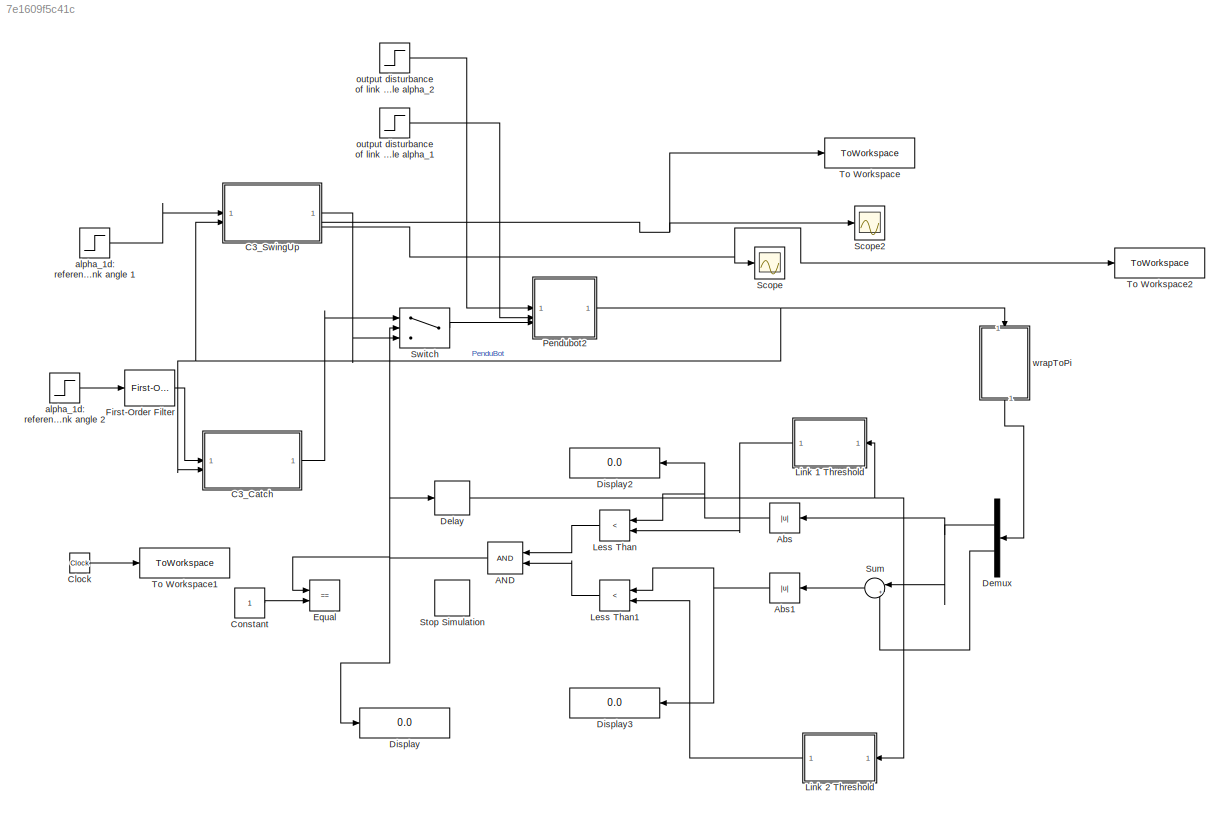
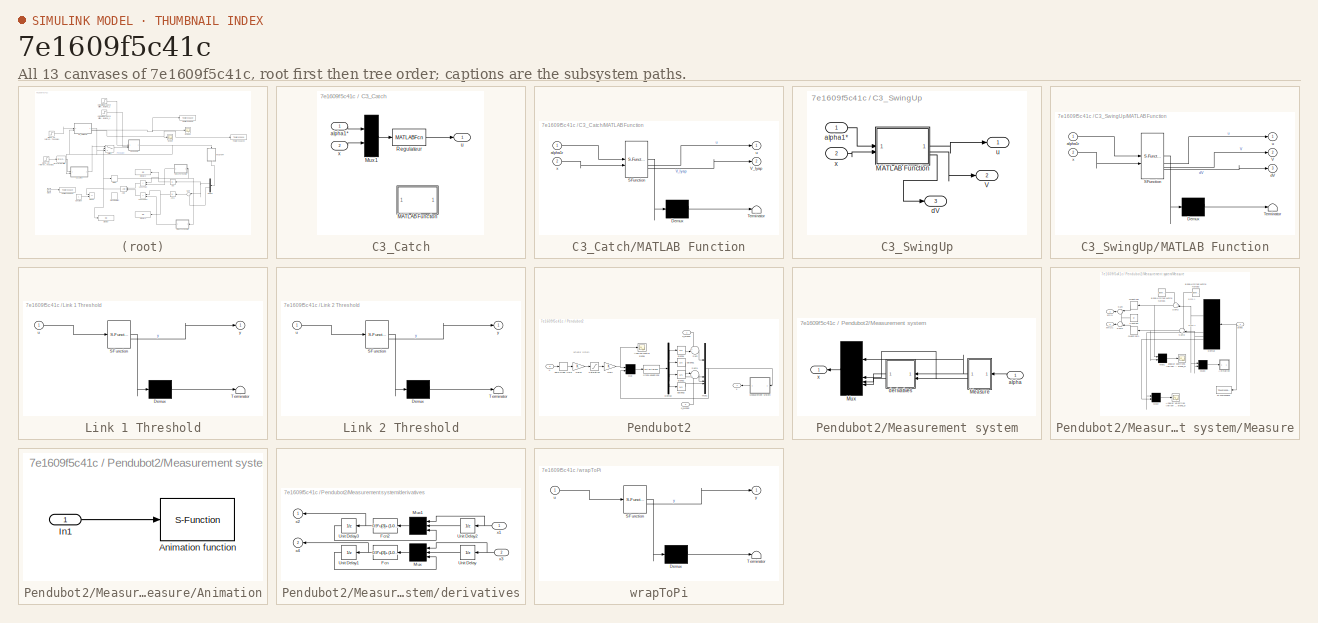
[diagram: thumbnail index - all 13 canvases of the model, root first then tree order]
MODEL slx_7e1609f5c41c
KIND model
CONFIG AbsTol = auto
CONFIG EnableMultiTasking = off
CONFIG FixedStep = auto
CONFIG MaxStep = auto
CONFIG MinStep = auto
CONFIG RelTol = 1e-3
CONFIG SampleTimeConstraint = Unconstrained
CONFIG SolverName = VariableStepAuto
CONFIG StartTime = 0.0
CONFIG StopTime = 10.0
BLOCK [Logic] AND
  AllPortsSameDT = off
  IconShape = distinctive
  NameLocation = top
  OutDataTypeStr = boolean
BLOCK [Abs] Abs
  NameLocation = top
  SaturateOnIntegerOverflow = off
BLOCK [Abs] Abs1
  NameLocation = top
  SaturateOnIntegerOverflow = off
BLOCK [SubSystem] C3_Catch
BLOCK [SubSystem] C3_Catch/MATLAB Function
  Commented = on
  ErrorFcn = Stateflow.Translate.translate
  LibrarySourceBlock = simulink/User-Defined\nFunctions/MATLAB Function
  PermitHierarchicalResolution = ExplicitOnly
  SFBlockType = MATLAB Function
  TreatAsAtomicUnit = on
BLOCK [Demux] C3_Catch/MATLAB Function/ Demux 
  Outputs = 1
BLOCK [S-Function] C3_Catch/MATLAB Function/ SFunction 
  EnableBusSupport = on
  FunctionName = sf_sfun
  PortCounts = [2 3]
  SFcnIsStateOwnerBlock = off
  SFunctionDeploymentMode = off
  Tag = Stateflow S-Function 3
BLOCK [Terminator] C3_Catch/MATLAB Function/ Terminator 
BLOCK [Outport] C3_Catch/MATLAB Function/V_lyap
  Port = 2
BLOCK [Inport] C3_Catch/MATLAB Function/alpha1r
BLOCK [Outport] C3_Catch/MATLAB Function/u
BLOCK [Inport] C3_Catch/MATLAB Function/x
  Port = 2
BLOCK [Mux] C3_Catch/Mux1
  Inputs = 2
BLOCK [MATLABFcn] C3_Catch/Regulateur
  MATLABFcn = pendubot_reg(u(1),[u(2),u(3),u(4),u(5)])
BLOCK [Inport] C3_Catch/alpha1*
BLOCK [Outport] C3_Catch/u
BLOCK [Inport] C3_Catch/x
  Port = 2
BLOCK [SubSystem] C3_SwingUp
BLOCK [SubSystem] C3_SwingUp/MATLAB Function
  ErrorFcn = Stateflow.Translate.translate
  LibrarySourceBlock = simulink/User-Defined\nFunctions/MATLAB Function
  PermitHierarchicalResolution = ExplicitOnly
  SFBlockType = MATLAB Function
  TreatAsAtomicUnit = on
BLOCK [Demux] C3_SwingUp/MATLAB Function/ Demux 
  Outputs = 1
BLOCK [S-Function] C3_SwingUp/MATLAB Function/ SFunction 
  EnableBusSupport = on
  FunctionName = sf_sfun
  PortCounts = [2 4]
  SFcnIsStateOwnerBlock = off
  SFunctionDeploymentMode = off
  Tag = Stateflow S-Function 1
BLOCK [Terminator] C3_SwingUp/MATLAB Function/ Terminator 
BLOCK [Outport] C3_SwingUp/MATLAB Function/V
  Port = 2
BLOCK [Inport] C3_SwingUp/MATLAB Function/alpha1r
BLOCK [Outport] C3_SwingUp/MATLAB Function/dV
  Port = 3
BLOCK [Outport] C3_SwingUp/MATLAB Function/u
BLOCK [Inport] C3_SwingUp/MATLAB Function/x
  Port = 2
BLOCK [Outport] C3_SwingUp/V
  Port = 2
BLOCK [Inport] C3_SwingUp/alpha1*
BLOCK [Outport] C3_SwingUp/dV
  Port = 3
BLOCK [Outport] C3_SwingUp/u
BLOCK [Inport] C3_SwingUp/x
  Port = 2
BLOCK [Clock] Clock
BLOCK [Constant] Constant
BLOCK [Delay] Delay
  DelayLength = 1
  InputPortMap = u0
BLOCK [Demux] Demux
  NameLocation = top
BLOCK [Display] Display
  Decimation = 1
BLOCK [Display] Display2
  Decimation = 1
  NameLocation = top
BLOCK [Display] Display3
  Decimation = 1
  NameLocation = top
BLOCK [RelationalOperator] Equal
  InputSameDT = off
  Operator = ==
  OutDataTypeStr = boolean
  RndMeth = Simplest
BLOCK [Reference] First-Order Filter  REF=spsFirstOrderFilterLib/First-Order
Filter
  LibrarySourceBlock = sps_lib/Control/Filters/First-Order\nFilter
  SourceBlock = spsFirstOrderFilterLib/First-Order\nFilter
  SourceType = First-Order Filter
BLOCK [RelationalOperator] Less Than
  InputSameDT = off
  NameLocation = top
  Operator = <
  OutDataTypeStr = boolean
  RndMeth = Simplest
BLOCK [RelationalOperator] Less Than1
  InputSameDT = off
  NameLocation = top
  Operator = <
  OutDataTypeStr = boolean
  RndMeth = Simplest
BLOCK [SubSystem] Link 1 Threshold
  ErrorFcn = Stateflow.Translate.translate
  LibrarySourceBlock = simulink/User-Defined\nFunctions/MATLAB Function
  NameLocation = top
  PermitHierarchicalResolution = ExplicitOnly
  SFBlockType = MATLAB Function
  TreatAsAtomicUnit = on
BLOCK [Demux] Link 1 Threshold/ Demux 
  Outputs = 1
BLOCK [S-Function] Link 1 Threshold/ SFunction 
  EnableBusSupport = on
  FunctionName = sf_sfun
  PortCounts = [1 2]
  SFcnIsStateOwnerBlock = off
  SFunctionDeploymentMode = off
  Tag = Stateflow S-Function 4
BLOCK [Terminator] Link 1 Threshold/ Terminator 
BLOCK [Inport] Link 1 Threshold/u
BLOCK [Outport] Link 1 Threshold/y
BLOCK [SubSystem] Link 2 Threshold
  ErrorFcn = Stateflow.Translate.translate
  LibrarySourceBlock = simulink/User-Defined\nFunctions/MATLAB Function
  NameLocation = top
  PermitHierarchicalResolution = ExplicitOnly
  SFBlockType = MATLAB Function
  TreatAsAtomicUnit = on
BLOCK [Demux] Link 2 Threshold/ Demux 
  Outputs = 1
BLOCK [S-Function] Link 2 Threshold/ SFunction 
  EnableBusSupport = on
  FunctionName = sf_sfun
  PortCounts = [1 2]
  SFcnIsStateOwnerBlock = off
  SFunctionDeploymentMode = off
  Tag = Stateflow S-Function 5
BLOCK [Terminator] Link 2 Threshold/ Terminator 
BLOCK [Inport] Link 2 Threshold/u
BLOCK [Outport] Link 2 Threshold/y
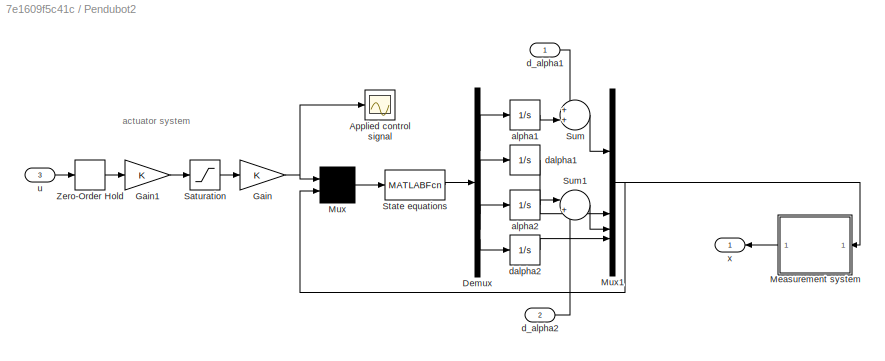
BLOCK [SubSystem] Pendubot2
BLOCK [Scope] Pendubot2/Applied control signal
  Floating = off
  NumInputPorts = 1
  ScopeSpecificationString = Simulink.scopes.TimeScopeBlockCfg('CurrentConfiguration', extmgr.ConfigurationSet(extmgr.Configuration('Core','General UI',true),extmgr.Configuration('Core','Source UI',true),extmgr.Configuration('Sources','WiredSimulink',true,'DataLoggingLimitDataPoints',true,'DataLoggingSaveFormat','Array','DataLoggingDecimation','1','DataLoggingDecimateData',true),extmgr.Configuration('Visuals','Time Domain',tr...<+1657ch>
BLOCK [Demux] Pendubot2/Demux
  DisplayOption = none
BLOCK [Gain] Pendubot2/Gain
  OutDataTypeStr = Inherit: Same as input
  ParamDataTypeStr = Inherit: Same as input
  SaturateOnIntegerOverflow = on
BLOCK [Gain] Pendubot2/Gain1
  OutDataTypeStr = Inherit: Same as input
  ParamDataTypeStr = Inherit: Same as input
  SaturateOnIntegerOverflow = on
BLOCK [SubSystem] Pendubot2/Measurement system
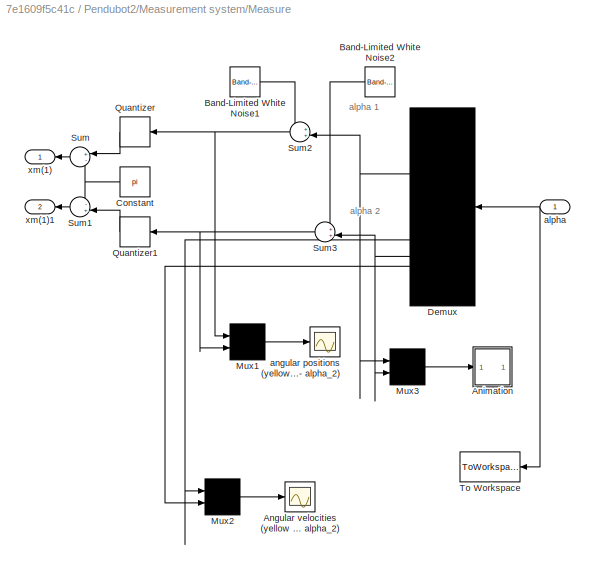
BLOCK [SubSystem] Pendubot2/Measurement system/Measure
BLOCK [Scope] Pendubot2/Measurement system/Measure/Angular velocities (yellow - for alpha_1, magenta - for alpha_2) 
  Floating = off
  NumInputPorts = 1
  ScopeSpecificationString = C++SS(StrPVP('Location','[1351, 455, 1837, 694]'),StrPVP('Open','off'),StrPVP('TickLabels','on'),MxPVP('AxesTitles',54,'struct(''axes1'',''%<SignalLabel>'')'),StrPVP('ShowLegends','off'),StrPVP('YMin','-3.5'),StrPVP('YMax','3.5'),StrPVP('BlockParamSampleTime','0'),StrPVP('LimitDataPoints','on'),StrPVP('DataFormat','Array'),StrPVP('Decimation','1'),StrPVP('BlockParamSampleInput','off'))
BLOCK [SubSystem] Pendubot2/Measurement system/Measure/Animation
BLOCK [S-Function] Pendubot2/Measurement system/Measure/Animation/Animation function
  DeleteFcn = if ~isempty(findobj('type','figure','name','simppend Animation'));close('simppend Animation'); end;
  EnableBusSupport = off
  FunctionName = pendubotanim
  Parameters = ts
  SFcnIsStateOwnerBlock = off
  SFunctionDeploymentMode = off
BLOCK [Inport] Pendubot2/Measurement system/Measure/Animation/In1
BLOCK [Reference] Pendubot2/Measurement system/Measure/Band-Limited White Noise1  REF=simulink/Sources/Band-Limited
White Noise
  SourceBlock = simulink/Sources/Band-Limited\nWhite Noise
  SourceType = Band-Limited White Noise.
BLOCK [Reference] Pendubot2/Measurement system/Measure/Band-Limited White Noise2  REF=simulink/Sources/Band-Limited
White Noise
  NameLocation = top
  SourceBlock = simulink/Sources/Band-Limited\nWhite Noise
  SourceType = Band-Limited White Noise.
BLOCK [Constant] Pendubot2/Measurement system/Measure/Constant
  Value = pi
BLOCK [Demux] Pendubot2/Measurement system/Measure/Demux
  DisplayOption = none
BLOCK [Mux] Pendubot2/Measurement system/Measure/Mux1
  Inputs = 2
BLOCK [Mux] Pendubot2/Measurement system/Measure/Mux2
  Inputs = 2
BLOCK [Mux] Pendubot2/Measurement system/Measure/Mux3
  Inputs = 2
BLOCK [Quantizer] Pendubot2/Measurement system/Measure/Quantizer
  QuantizationInterval = 2*pi/5000
BLOCK [Quantizer] Pendubot2/Measurement system/Measure/Quantizer1
  QuantizationInterval = 2*pi/5000
BLOCK [Sum] Pendubot2/Measurement system/Measure/Sum
  InputSameDT = on
  Inputs = +-
  OutDataTypeStr = Inherit: Same as first input
  SaturateOnIntegerOverflow = on
BLOCK [Sum] Pendubot2/Measurement system/Measure/Sum1
  InputSameDT = on
  Inputs = -+
  OutDataTypeStr = Inherit: Same as first input
  SaturateOnIntegerOverflow = on
BLOCK [Sum] Pendubot2/Measurement system/Measure/Sum2
  InputSameDT = on
  Inputs = ++|
  NameLocation = top
  OutDataTypeStr = Inherit: Same as first input
  SaturateOnIntegerOverflow = on
BLOCK [Sum] Pendubot2/Measurement system/Measure/Sum3
  InputSameDT = on
  Inputs = ++|
  NameLocation = top
  OutDataTypeStr = Inherit: Same as first input
  SaturateOnIntegerOverflow = on
BLOCK [ToWorkspace] Pendubot2/Measurement system/Measure/To Workspace
  MaxDataPoints = inf
  SampleTime = Ts
  VariableName = alpha
BLOCK [Inport] Pendubot2/Measurement system/Measure/alpha
BLOCK [Scope] Pendubot2/Measurement system/Measure/angular positions (yellow - alpha_1, magenta - alpha_2)
  Floating = off
  NumInputPorts = 1
  ScopeSpecificationString = C++SS(StrPVP('Location','[881, 350, 1368, 572]'),StrPVP('Open','off'),StrPVP('TickLabels','on'),MxPVP('AxesTitles',54,'struct(''axes1'',''%<SignalLabel>'')'),StrPVP('ShowLegends','off'),StrPVP('YMin','1.5'),StrPVP('YMax','6'),StrPVP('BlockParamSampleTime','0'),StrPVP('LimitDataPoints','on'),StrPVP('DataFormat','Array'),StrPVP('Decimation','1'),StrPVP('BlockParamSampleInput','off'))
BLOCK [Outport] Pendubot2/Measurement system/Measure/xm(1)
  Tag = alpha1
BLOCK [Outport] Pendubot2/Measurement system/Measure/xm(1)1
  Port = 2
BLOCK [Mux] Pendubot2/Measurement system/Mux
BLOCK [Inport] Pendubot2/Measurement system/alpha
BLOCK [SubSystem] Pendubot2/Measurement system/derivatives
BLOCK [Fcn] Pendubot2/Measurement system/derivatives/Fcn
  Expr = 0.9*u[3]+(1-0.9)/0.003*(u[1]-u[2])
BLOCK [Fcn] Pendubot2/Measurement system/derivatives/Fcn2
  Expr = 0.9*u[3]+(1-0.9)/0.003*(u[1]-u[2])
BLOCK [Mux] Pendubot2/Measurement system/derivatives/Mux
  Inputs = 3
BLOCK [Mux] Pendubot2/Measurement system/derivatives/Mux1
  Inputs = 3
BLOCK [UnitDelay] Pendubot2/Measurement system/derivatives/Unit Delay
  HasFrameUpgradeWarning = on
  SampleTime = Ts
BLOCK [UnitDelay] Pendubot2/Measurement system/derivatives/Unit Delay1
  HasFrameUpgradeWarning = on
  SampleTime = Ts
BLOCK [UnitDelay] Pendubot2/Measurement system/derivatives/Unit Delay2
  HasFrameUpgradeWarning = on
  SampleTime = Ts
BLOCK [UnitDelay] Pendubot2/Measurement system/derivatives/Unit Delay3
  HasFrameUpgradeWarning = on
  SampleTime = Ts
BLOCK [Inport] Pendubot2/Measurement system/derivatives/x1
BLOCK [Outport] Pendubot2/Measurement system/derivatives/x2
BLOCK [Inport] Pendubot2/Measurement system/derivatives/x3
  Port = 2
BLOCK [Outport] Pendubot2/Measurement system/derivatives/x4
  Port = 2
BLOCK [Outport] Pendubot2/Measurement system/x
BLOCK [Mux] Pendubot2/Mux
  Inputs = 2
BLOCK [Mux] Pendubot2/Mux1
  DisplayOption = bar
BLOCK [Saturate] Pendubot2/Saturation
  LowerLimit = -10
  UpperLimit = 10
BLOCK [MATLABFcn] Pendubot2/State equations
  MATLABFcn = pendubot_eqt(u(1),[u(2);u(3);u(4);u(5)])
  OutputDimensions = 4
BLOCK [Sum] Pendubot2/Sum
  InputSameDT = on
  Inputs = ++|
  OutDataTypeStr = Inherit: Same as first input
  SaturateOnIntegerOverflow = on
BLOCK [Sum] Pendubot2/Sum1
  InputSameDT = on
  Inputs = |++
  OutDataTypeStr = Inherit: Same as first input
  SaturateOnIntegerOverflow = on
BLOCK [ZeroOrderHold] Pendubot2/Zero-Order Hold
  SampleTime = Ts
BLOCK [Integrator] Pendubot2/alpha1
  InitialCondition = x10
BLOCK [Integrator] Pendubot2/alpha2
  InitialCondition = x30
BLOCK [Inport] Pendubot2/d_alpha1
BLOCK [Inport] Pendubot2/d_alpha2
  Port = 2
BLOCK [Integrator] Pendubot2/dalpha1
  InitialCondition = x20
BLOCK [Integrator] Pendubot2/dalpha2
  InitialCondition = x40
BLOCK [Inport] Pendubot2/u
  Port = 3
BLOCK [Outport] Pendubot2/x
BLOCK [Scope] Scope
  Floating = off
  NumInputPorts = 1
  ScopeSpecificationString = Simulink.scopes.TimeScopeBlockCfg('CurrentConfiguration', extmgr.ConfigurationSet(extmgr.Configuration('Core','General UI',true),extmgr.Configuration('Core','Source UI',true),extmgr.Configuration('Sources','WiredSimulink',true,'DataLoggingVariableName','ScopeData1'),extmgr.Configuration('Visuals','Time Domain',true,'SerializedDisplays',{struct('MinYLimReal','-12337.0055','MaxYLimReal','1370.77839'...<+1415ch>
BLOCK [Scope] Scope2
  Floating = off
  NumInputPorts = 1
  ScopeSpecificationString = Simulink.scopes.TimeScopeBlockCfg('CurrentConfiguration', extmgr.ConfigurationSet(extmgr.Configuration('Core','General UI',true),extmgr.Configuration('Core','Source UI',true),extmgr.Configuration('Sources','WiredSimulink',true,'DataLoggingVariableName','ScopeData1'),extmgr.Configuration('Visuals','Time Domain',true,'SerializedDisplays',{struct('MinYLimReal','399.87222','MaxYLimReal','1633.19519','...<+1441ch>
BLOCK [Stop] Stop Simulation
BLOCK [Sum] Sum
  Inputs = |++
  NameLocation = top
BLOCK [Switch] Switch
  Criteria = u2 > Threshold
  InputSameDT = off
  SaturateOnIntegerOverflow = off
BLOCK [ToWorkspace] To Workspace
  FixptAsFi = on
  MaxDataPoints = inf
  SampleTime = -1
  SaveFormat = Structure With Time
  VariableName = lyapunov
BLOCK [ToWorkspace] To Workspace1
  FixptAsFi = on
  MaxDataPoints = inf
  SampleTime = -1
  SaveFormat = Structure
  VariableName = time
BLOCK [ToWorkspace] To Workspace2
  FixptAsFi = on
  MaxDataPoints = inf
  SampleTime = -1
  SaveFormat = Structure
  VariableName = dV
BLOCK [Step] alpha_1d: reference for first link angle 1
  After = pi
  SampleTime = Ts
  Time = 2
BLOCK [Step] alpha_1d: reference for first link angle 2
  After = pi
  SampleTime = Ts
  Time = 2
BLOCK [Step] output disturbance of link 1 angle alpha_2
  After = 0
  SampleTime = Ts
  Time = 5
BLOCK [Step] output disturbance of link 2 angle alpha_1
  After = 0
  SampleTime = Ts
  Time = 2
BLOCK [SubSystem] wrapToPi
  ErrorFcn = Stateflow.Translate.translate
  LibrarySourceBlock = simulink/User-Defined\nFunctions/MATLAB Function
  NameLocation = left
  PermitHierarchicalResolution = ExplicitOnly
  SFBlockType = MATLAB Function
  TreatAsAtomicUnit = on
BLOCK [Demux] wrapToPi/ Demux 
  Outputs = 1
BLOCK [S-Function] wrapToPi/ SFunction 
  EnableBusSupport = on
  FunctionName = sf_sfun
  PortCounts = [1 2]
  SFcnIsStateOwnerBlock = off
  SFunctionDeploymentMode = off
  Tag = Stateflow S-Function 2
BLOCK [Terminator] wrapToPi/ Terminator 
BLOCK [Inport] wrapToPi/u
BLOCK [Outport] wrapToPi/y
ANNOTATION Pendubot2: actuator system
ANNOTATION Pendubot2/Measurement system/Measure: alpha 1
ANNOTATION Pendubot2/Measurement system/Measure: alpha 2
NET AND:1 -> Delay:1, Display:1, Equal:1, Switch:2
NET Abs1:1 -> Display3:1, Less Than1:1
NET Abs:1 -> Display2:1, Less Than:1
LINE C3_Catch/Mux1:1 -> C3_Catch/Regulateur:1
LINE C3_Catch/Regulateur:1 -> C3_Catch/u:1
LINE C3_Catch/alpha1*:1 -> C3_Catch/Mux1:1
LINE C3_Catch/x:1 -> C3_Catch/Mux1:2
LINE C3_Catch:1 -> Switch:1
LINE C3_SwingUp/MATLAB Function:1 -> C3_SwingUp/u:1
LINE C3_SwingUp/MATLAB Function:2 -> C3_SwingUp/V:1
LINE C3_SwingUp/MATLAB Function:3 -> C3_SwingUp/dV:1
LINE C3_SwingUp/alpha1*:1 -> C3_SwingUp/MATLAB Function:1
LINE C3_SwingUp/x:1 -> C3_SwingUp/MATLAB Function:2
LINE C3_SwingUp:1 -> Switch:3
NET C3_SwingUp:2 -> Scope2:1, To Workspace:1
NET C3_SwingUp:3 -> Scope:1, To Workspace2:1
LINE Clock:1 -> To Workspace1:1
LINE Constant:1 -> Equal:2
NET Delay:1 -> Link 1 Threshold:1, Link 2 Threshold:1
NET Demux:1 -> Abs:1, Sum:1
LINE Demux:2 -> Sum:2
LINE First-Order Filter:1 -> C3_Catch:1
LINE Less Than1:1 -> AND:2
LINE Less Than:1 -> AND:1
LINE Link 1 Threshold:1 -> Less Than:2
LINE Link 2 Threshold:1 -> Less Than1:2
LINE Pendubot2/Demux:1 -> Pendubot2/alpha1:1
LINE Pendubot2/Demux:2 -> Pendubot2/dalpha1:1
LINE Pendubot2/Demux:3 -> Pendubot2/alpha2:1
LINE Pendubot2/Demux:4 -> Pendubot2/dalpha2:1
LINE Pendubot2/Gain1:1 -> Pendubot2/Saturation:1
NET Pendubot2/Gain:1 -> Pendubot2/Applied control signal:1, Pendubot2/Mux:1
LINE Pendubot2/Measurement system/Measure/Animation/In1:1 -> Pendubot2/Measurement system/Measure/Animation/Animation function:1
LINE Pendubot2/Measurement system/Measure/Band-Limited White Noise1:1 -> Pendubot2/Measurement system/Measure/Sum2:1
LINE Pendubot2/Measurement system/Measure/Band-Limited White Noise2:1 -> Pendubot2/Measurement system/Measure/Sum3:1
NET Pendubot2/Measurement system/Measure/Constant:1 -> Pendubot2/Measurement system/Measure/Sum1:1, Pendubot2/Measurement system/Measure/Sum:2
NET Pendubot2/Measurement system/Measure/Demux:1 -> Pendubot2/Measurement system/Measure/Mux3:1, Pendubot2/Measurement system/Measure/Sum2:2
LINE Pendubot2/Measurement system/Measure/Demux:2 -> Pendubot2/Measurement system/Measure/Mux2:1
NET Pendubot2/Measurement system/Measure/Demux:3 -> Pendubot2/Measurement system/Measure/Mux3:2, Pendubot2/Measurement system/Measure/Sum3:2
LINE Pendubot2/Measurement system/Measure/Demux:4 -> Pendubot2/Measurement system/Measure/Mux2:2
LINE Pendubot2/Measurement system/Measure/Mux1:1 -> Pendubot2/Measurement system/Measure/angular positions (yellow - alpha_1, magenta - alpha_2):1
LINE Pendubot2/Measurement system/Measure/Mux2:1 -> Pendubot2/Measurement system/Measure/Angular velocities (yellow - for alpha_1, magenta - for alpha_2) :1
LINE Pendubot2/Measurement system/Measure/Mux3:1 -> Pendubot2/Measurement system/Measure/Animation:1
LINE Pendubot2/Measurement system/Measure/Quantizer1:1 -> Pendubot2/Measurement system/Measure/Sum1:2
LINE Pendubot2/Measurement system/Measure/Quantizer:1 -> Pendubot2/Measurement system/Measure/Sum:1
LINE Pendubot2/Measurement system/Measure/Sum1:1 -> Pendubot2/Measurement system/Measure/xm(1)1:1
NET Pendubot2/Measurement system/Measure/Sum2:1 -> Pendubot2/Measurement system/Measure/Mux1:1, Pendubot2/Measurement system/Measure/Quantizer:1
NET Pendubot2/Measurement system/Measure/Sum3:1 -> Pendubot2/Measurement system/Measure/Mux1:2, Pendubot2/Measurement system/Measure/Quantizer1:1
LINE Pendubot2/Measurement system/Measure/Sum:1 -> Pendubot2/Measurement system/Measure/xm(1):1
NET Pendubot2/Measurement system/Measure/alpha:1 -> Pendubot2/Measurement system/Measure/Demux:1, Pendubot2/Measurement system/Measure/To Workspace:1
NET Pendubot2/Measurement system/Measure:1 -> Pendubot2/Measurement system/Mux:1, Pendubot2/Measurement system/derivatives:1
NET Pendubot2/Measurement system/Measure:2 -> Pendubot2/Measurement system/Mux:2, Pendubot2/Measurement system/derivatives:2
LINE Pendubot2/Measurement system/Mux:1 -> Pendubot2/Measurement system/x:1
LINE Pendubot2/Measurement system/alpha:1 -> Pendubot2/Measurement system/Measure:1
NET Pendubot2/Measurement system/derivatives/Fcn2:1 -> Pendubot2/Measurement system/derivatives/Unit Delay3:1, Pendubot2/Measurement system/derivatives/x2:1
NET Pendubot2/Measurement system/derivatives/Fcn:1 -> Pendubot2/Measurement system/derivatives/Unit Delay1:1, Pendubot2/Measurement system/derivatives/x4:1
LINE Pendubot2/Measurement system/derivatives/Mux1:1 -> Pendubot2/Measurement system/derivatives/Fcn2:1
LINE Pendubot2/Measurement system/derivatives/Mux:1 -> Pendubot2/Measurement system/derivatives/Fcn:1
LINE Pendubot2/Measurement system/derivatives/Unit Delay1:1 -> Pendubot2/Measurement system/derivatives/Mux:3
LINE Pendubot2/Measurement system/derivatives/Unit Delay2:1 -> Pendubot2/Measurement system/derivatives/Mux1:2
LINE Pendubot2/Measurement system/derivatives/Unit Delay3:1 -> Pendubot2/Measurement system/derivatives/Mux1:3
LINE Pendubot2/Measurement system/derivatives/Unit Delay:1 -> Pendubot2/Measurement system/derivatives/Mux:2
NET Pendubot2/Measurement system/derivatives/x1:1 -> Pendubot2/Measurement system/derivatives/Mux1:1, Pendubot2/Measurement system/derivatives/Unit Delay2:1
NET Pendubot2/Measurement system/derivatives/x3:1 -> Pendubot2/Measurement system/derivatives/Mux:1, Pendubot2/Measurement system/derivatives/Unit Delay:1
LINE Pendubot2/Measurement system/derivatives:1 -> Pendubot2/Measurement system/Mux:3
LINE Pendubot2/Measurement system/derivatives:2 -> Pendubot2/Measurement system/Mux:4
LINE Pendubot2/Measurement system:1 -> Pendubot2/x:1
NET Pendubot2/Mux1:1 -> Pendubot2/Measurement system:1, Pendubot2/Mux:2
LINE Pendubot2/Mux:1 -> Pendubot2/State equations:1
LINE Pendubot2/Saturation:1 -> Pendubot2/Gain:1
LINE Pendubot2/State equations:1 -> Pendubot2/Demux:1
LINE Pendubot2/Sum1:1 -> Pendubot2/Mux1:3
LINE Pendubot2/Sum:1 -> Pendubot2/Mux1:1
LINE Pendubot2/Zero-Order Hold:1 -> Pendubot2/Gain1:1
LINE Pendubot2/alpha1:1 -> Pendubot2/Sum:2
LINE Pendubot2/alpha2:1 -> Pendubot2/Sum1:1
LINE Pendubot2/d_alpha1:1 -> Pendubot2/Sum:1
LINE Pendubot2/d_alpha2:1 -> Pendubot2/Sum1:2
LINE Pendubot2/dalpha1:1 -> Pendubot2/Mux1:2
LINE Pendubot2/dalpha2:1 -> Pendubot2/Mux1:4
LINE Pendubot2/u:1 -> Pendubot2/Zero-Order Hold:1
NET Pendubot2:1 -> C3_Catch:2, C3_SwingUp:2, wrapToPi:1
LINE Sum:1 -> Abs1:1
LINE Switch:1 -> Pendubot2:3
LINE alpha_1d: reference for first link angle 1:1 -> C3_SwingUp:1
LINE alpha_1d: reference for first link angle 2:1 -> First-Order Filter:1
LINE output disturbance of link 1 angle alpha_2:1 -> Pendubot2:1
LINE output disturbance of link 2 angle alpha_1:1 -> Pendubot2:2
LINE wrapToPi:1 -> Demux:1
note: NET lines group one-source signal fan-out (src -> all destinations, sorted); 1:1 wires keep LINE
CHART C3_SwingUp/MATLAB Function states=1 transitions=1
  STATE_LABEL 'eML_blk_kernel()'
  STATE_LABEL 'SCRIPT:\nfunction [u, V, dV] = pendubot_C3(alpha1r,x)\n\na1 = x(1);\na2 = x(2);\nda1 = x(3);\nda2 = x(4);\n\n% Define Constants\np1 = 0.0148;\np2 = 0.0051;\np3 = 0.0046;\np4 = 0.1003;\np5 = 0.0303;\ngrav  = 9.81;\ntorque = 3.9621;\nk = 3.9621/8;\n% tau = [torque ; 0];\n\n% Dynamic Matrices\n\nM  = [p1+p2+p3*cos(a2), p2+p3*cos(a2); p2+p3*cos(a2), p2];\nC = p3*sin(a2) * [-da2 , -da1 - da2 ; -da1 , 0];\nG  = [p4*grav*cos(a...<+669ch>'
CHART wrapToPi states=1 transitions=1
  STATE_LABEL 'eML_blk_kernel()'
  STATE_LABEL 'SCRIPT:\nfunction y = fcn(u)\n\ny = wrapToPi(u);\n'
CHART C3_Catch/MATLAB Function states=1 transitions=1
  STATE_LABEL 'eML_blk_kernel()'
  STATE_LABEL 'SCRIPT:\nfunction [u, V_lyap] = pendulumNonLinear(alpha1r,x)\n%UNTITLED Summary of this function goes here\n%   Detailed explanation goes here\n    alpha1 = x(1);\n    alpha2 = x(2);\n    dalpha1 = x(3);\n    dalpha2 = x(4);\n\n    p1 = 0.0148; p2 = 0.0051; p3 = 0.0046; p4 = 0.1003; p5 = 0.0303;\n    g = 9.81;\n    E_ref = (p4 + p5) * g;\n\n    % Mass matrix M(alpha)\n    M = [p1 + p2 + 2*p3*cos(alpha2 - alpha1...<+624ch>'
CHART Link 1 Threshold states=1 transitions=1
  STATE_LABEL 'eML_blk_kernel()'
  STATE_LABEL 'SCRIPT:\nfunction y = fcn(u)\nif u == 1\n    y = 100;\nelse\n    y = 0.01;\nend\n'
CHART Link 2 Threshold states=1 transitions=1
  STATE_LABEL 'eML_blk_kernel()'
  STATE_LABEL 'SCRIPT:\nfunction y = fcn(u)\nif u == 1\n    y = 200;\nelse\n    y = 0.2;\nend\n'
CHART  states=0 transitions=0
CHART  states=0 transitions=0
CHART  states=0 transitions=0
CHART  states=0 transitions=0
CHART  states=0 transitions=0
